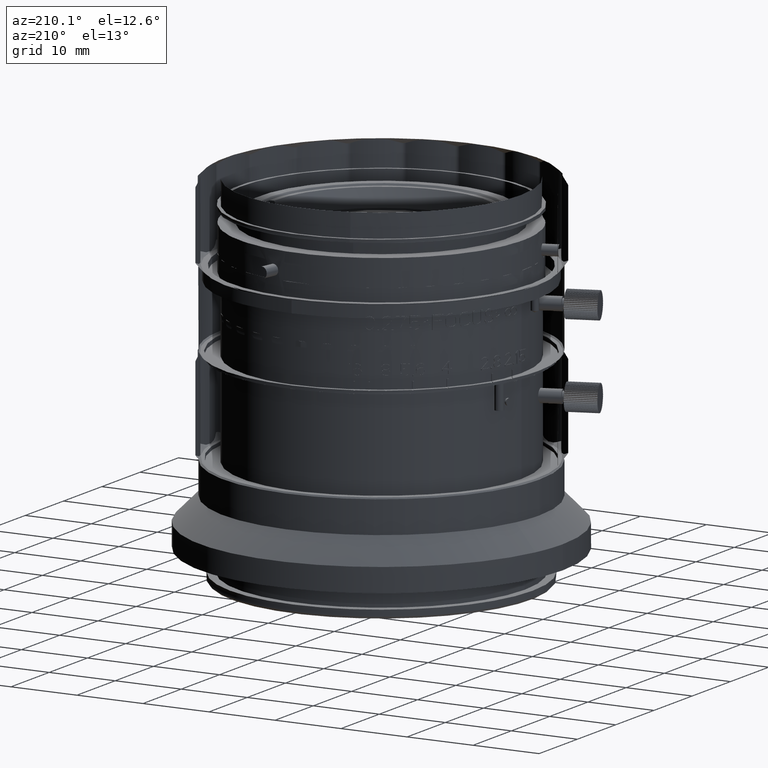
[diagram: clean part render]
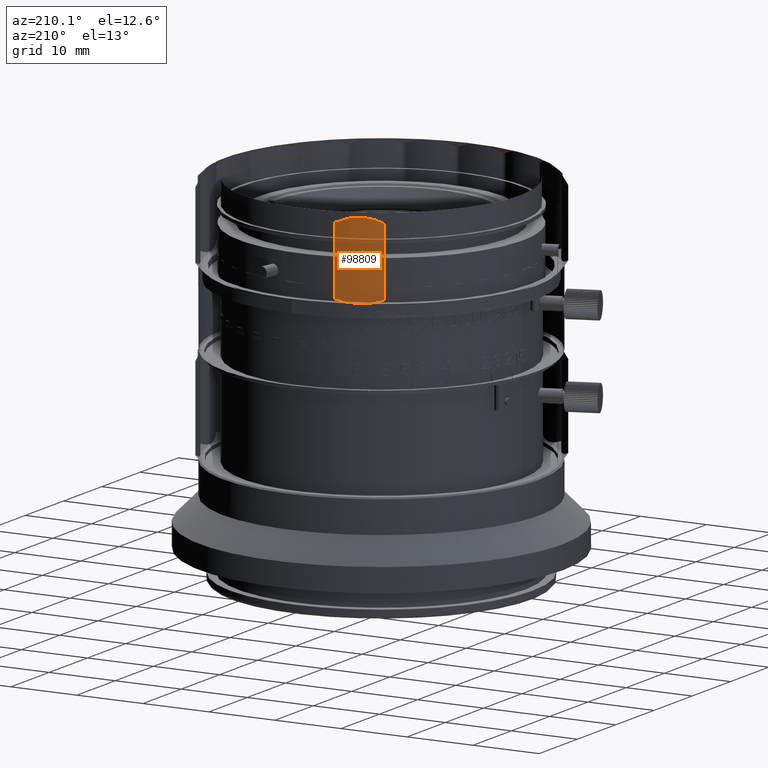
[diagram: same view with one face highlighted and labeled with its STEP entity id]
A machine part, auxiliary view. The second image highlights one B-rep face of the part: STEP entity #98809.
In plain terms, the highlighted cylindrical surface (partial cylindrical patch) has radius 12 mm, axis along (0, 0, -1).
Its self-contained STEP definition (entity closure, byte-faithful):
#165 = CARTESIAN_POINT ( 'NONE',  ( 12.97876691602714061, 172.0445804744520331, 0.4292614063195676621 ) ) ;
#1224 = CARTESIAN_POINT ( 'NONE',  ( 14.85934242119408744, 172.7186698376395384, 0.2399982935882025992 ) ) ;
#1886 = ORIENTED_EDGE ( 'NONE', *, *, #66856, .T. ) ;
#3799 = CARTESIAN_POINT ( 'NONE',  ( 15.84229651069127698, 173.2274142907566841, 0.3610169438066848646 ) ) ;
#4329 = CARTESIAN_POINT ( 'NONE',  ( 14.36312422311913473, 172.5051111743483432, 11.84000170641039595 ) ) ;
#5763 = FACE_OUTER_BOUND ( 'NONE', #25250, .T. ) ;
#7646 = CARTESIAN_POINT ( 'NONE',  ( 13.59244976808349215, 172.2132086713253898, 0.2982378233034623793 ) ) ;
#9687 = B_SPLINE_CURVE_WITH_KNOTS ( 'NONE', 3,
 ( #17382, #15802, #48800, #49306 ),
 .UNSPECIFIED., .F., .F.,
 ( 4, 4 ),
 ( 0.000000000000000000, 1.000000000000000000 ),
 .UNSPECIFIED. ) ;
#10775 = ORIENTED_EDGE ( 'NONE', *, *, #38136, .T. ) ;
#11422 = AXIS2_PLACEMENT_3D ( 'NONE', #14825, #38237, #77679 ) ;
#12329 = CARTESIAN_POINT ( 'NONE',  ( 16.99829896620909153, 173.9790740545632559, 11.37374039874287845 ) ) ;
#12854 = CARTESIAN_POINT ( 'NONE',  ( 17.21666227492107026, 174.1442508467244181, 11.27805276343194407 ) ) ;
#13374 = CARTESIAN_POINT ( 'NONE',  ( 15.60113130225684408, 173.0776899520712959, 11.78176217668610626 ) ) ;
#14825 = CARTESIAN_POINT ( 'NONE',  ( 9.867435424070441385, 183.6344302088990048, 6.040016862345479076 ) ) ;
#15802 = CARTESIAN_POINT ( 'NONE',  ( 11.43642558011166876, 171.7374444608092290, 7.749779129829686752 ) ) ;
#16693 = CARTESIAN_POINT ( 'NONE',  ( 12.38030947271998095, 171.8996850754695345, 0.5822697562960894579 ) ) ;
#17382 = CARTESIAN_POINT ( 'NONE',  ( 11.43642558011230115, 171.7374444608055057, 11.16933738949195920 ) ) ;
#18497 = CARTESIAN_POINT ( 'NONE',  ( 17.42880474867331131, 174.3163996263692468, 7.749779129829757807 ) ) ;
#18769 = CARTESIAN_POINT ( 'NONE',  ( 16.02620090903052130, 173.3351908225715476, 0.4005537121752622554 ) ) ;
#19807 = CARTESIAN_POINT ( 'NONE',  ( 15.10745152026406046, 172.8254491692991053, 11.83999658724174786 ) ) ;
#20863 = CARTESIAN_POINT ( 'NONE',  ( 13.71719599574490012, 172.2678803091232851, 11.78176814945230788 ) ) ;
#21900 = CARTESIAN_POINT ( 'NONE',  ( 16.14547060630690112, 173.4074426382354090, 11.65073859367211639 ) ) ;
#23615 = CARTESIAN_POINT ( 'NONE',  ( 11.70728281365747669, 171.7731654696533212, 0.8019472365968065564 ) ) ;
#24395 = CARTESIAN_POINT ( 'NONE',  ( 17.42880474869064855, 174.3163996263739932, 0.9106626104907910024 ) ) ;
#25250 = EDGE_LOOP ( 'NONE', ( #49783, #32735, #10775, #1886 ) ) ;
#26461 = CARTESIAN_POINT ( 'NONE',  ( 17.42880474867331131, 174.3163996263692468, 4.330220870166412439 ) ) ;
#28301 = CARTESIAN_POINT ( 'NONE',  ( 17.00449503299152099, 173.9720819682685828, 0.6932191698120128143 ) ) ;
#28805 = CARTESIAN_POINT ( 'NONE',  ( 13.11323041602540407, 172.0815284476176998, 11.67944628782073124 ) ) ;
#32735 = ORIENTED_EDGE ( 'NONE', *, *, #95438, .T. ) ;
#35541 = VERTEX_POINT ( 'NONE', #41941 ) ;
#36799 = CARTESIAN_POINT ( 'NONE',  ( 14.10846772385379388, 172.4054455101197618, 11.82544395706695717 ) ) ;
#37318 = CARTESIAN_POINT ( 'NONE',  ( 12.51674176810439043, 171.9176248860021587, 11.55210062349452826 ) ) ;
#37843 = CARTESIAN_POINT ( 'NONE',  ( 13.31792620865803833, 172.1409947490219849, 11.71898305618811165 ) ) ;
#38136 = EDGE_CURVE ( 'NONE', #35541, #68337, #39759, .T. ) ;
#38237 = DIRECTION ( 'NONE',  ( 0.000000000000000000, 0.000000000000000000, -1.000000000000000000 ) ) ;
#39759 = B_SPLINE_CURVE_WITH_KNOTS ( 'NONE', 3,
 ( #74166, #23615, #105087, #16693, #88585, #41702, #49139, #165, #7646, #40130, #1224, #64591, #89125, #81646, #3799, #82699, #18769, #42716, #28301, #50177 ),
 .UNSPECIFIED., .F., .F.,
 ( 4, 2, 1, 2, 2, 2, 2, 1, 2, 2, 4 ),
 ( 0.000000000000000000, 0.1249999999999998890, 0.1874999999999994726, 0.2187499999999992784, 0.2499999999999990841, 0.5000000000000106581, 0.6250000000000167644, 0.6875000000000194289, 0.7187500000000202061, 0.7500000000000208722, 1.000000000000000000 ),
 .UNSPECIFIED. ) ;
#40130 = CARTESIAN_POINT ( 'NONE',  ( 14.11501512411694570, 172.3983318427178233, 0.2400034127493720637 ) ) ;
#41702 = CARTESIAN_POINT ( 'NONE',  ( 12.78120185689402533, 171.9933528334150026, 0.4753788182041849830 ) ) ;
#41941 = CARTESIAN_POINT ( 'NONE',  ( 11.43642558010849974, 171.7374444608044826, 0.9106626104925680254 ) ) ;
#42716 = CARTESIAN_POINT ( 'NONE',  ( 16.55528888048909053, 173.6557044773959717, 0.5278993764581791925 ) ) ;
#45316 = CARTESIAN_POINT ( 'NONE',  ( 16.31848980518220316, 173.5157042683969166, 11.60462118182514857 ) ) ;
#48800 = CARTESIAN_POINT ( 'NONE',  ( 11.43642558011193167, 171.7374444608092858, 4.330220870166472835 ) ) ;
#49139 = CARTESIAN_POINT ( 'NONE',  ( 12.91426299453387117, 172.0274685460469470, 0.4438196738220018811 ) ) ;
#49306 = CARTESIAN_POINT ( 'NONE',  ( 11.43642558010849974, 171.7374444608044826, 0.9106626104925680254 ) ) ;
#49783 = ORIENTED_EDGE ( 'NONE', *, *, #105142, .T. ) ;
#50177 = CARTESIAN_POINT ( 'NONE',  ( 17.42880474869064855, 174.3163996263739932, 0.9106626104907910024 ) ) ;
#57362 = CARTESIAN_POINT ( 'NONE',  ( 17.42880474868855245, 174.3163996263724869, 11.16933738949425958 ) ) ;
#61275 = CARTESIAN_POINT ( 'NONE',  ( 11.43642558011230115, 171.7374444608055057, 11.16933738949195920 ) ) ;
#64591 = CARTESIAN_POINT ( 'NONE',  ( 15.10678635623857247, 172.8350943893769056, 0.2545560429324790763 ) ) ;
#66856 = EDGE_CURVE ( 'NONE', #68337, #85409, #80036, .T. ) ;
#67733 = CARTESIAN_POINT ( 'NONE',  ( 11.43642558011230115, 171.7374444608055057, 11.16933738949195920 ) ) ;
#68337 = VERTEX_POINT ( 'NONE', #24395 ) ;
#69272 = CARTESIAN_POINT ( 'NONE',  ( 13.51924056866963042, 172.2020811999162220, 11.75447044974511890 ) ) ;
#70324 = CARTESIAN_POINT ( 'NONE',  ( 11.97817167063042021, 171.8088906490368402, 11.38678083013650522 ) ) ;
#74166 = CARTESIAN_POINT ( 'NONE',  ( 11.43642558010849974, 171.7374444608044826, 0.9106626104925680254 ) ) ;
#77293 = CARTESIAN_POINT ( 'NONE',  ( 16.66210769048314688, 173.7424532516389206, 11.49773024376126429 ) ) ;
#77679 = DIRECTION ( 'NONE',  ( 0.6301141103835614654, -0.7765025485441324760, 0.000000000000000000 ) ) ;
#77815 = CARTESIAN_POINT ( 'NONE',  ( 16.20224103969530915, 173.4425238563415803, 11.63618032619060472 ) ) ;
#80036 = B_SPLINE_CURVE_WITH_KNOTS ( 'NONE', 3,
 ( #90401, #26461, #18497, #90932 ),
 .UNSPECIFIED., .F., .F.,
 ( 4, 4 ),
 ( 0.000000000000000000, 1.000000000000000000 ),
 .UNSPECIFIED. ) ;
#81646 = CARTESIAN_POINT ( 'NONE',  ( 15.65954007302760509, 173.1232072347231110, 0.3255295502518528172 ) ) ;
#82699 = CARTESIAN_POINT ( 'NONE',  ( 15.96385738908711183, 173.2981550311889976, 0.3864951381429901356 ) ) ;
#82810 = CARTESIAN_POINT ( 'NONE',  ( 16.49185132247669827, 173.6269283129115593, 11.55483976428345905 ) ) ;
#85409 = VERTEX_POINT ( 'NONE', #57362 ) ;
#87779 = CYLINDRICAL_SURFACE ( 'NONE', #11422, 12.00000000000020783 ) ;
#88585 = CARTESIAN_POINT ( 'NONE',  ( 12.58125007115444483, 171.9439131008092545, 0.5251602357665290377 ) ) ;
#89125 = CARTESIAN_POINT ( 'NONE',  ( 15.47567024989966455, 173.0246792588688436, 0.2982318505458936286 ) ) ;
#90401 = CARTESIAN_POINT ( 'NONE',  ( 17.42880474869064855, 174.3163996263739932, 0.9106626104907910024 ) ) ;
#90932 = CARTESIAN_POINT ( 'NONE',  ( 17.42880474868855245, 174.3163996263724869, 11.16933738949425958 ) ) ;
#94852 = CARTESIAN_POINT ( 'NONE',  ( 17.42880474868855245, 174.3163996263724869, 11.16933738949425958 ) ) ;
#95438 = EDGE_CURVE ( 'NONE', #97814, #35541, #9687, .T. ) ;
#97814 = VERTEX_POINT ( 'NONE', #67733 ) ;
#98000 = B_SPLINE_CURVE_WITH_KNOTS ( 'NONE', 3,
 ( #94852, #12854, #12329, #77293, #82810, #45316, #77815, #21900, #13374, #19807, #4329, #36799, #20863, #69272, #37843, #101775, #28805, #37318, #70324, #61275 ),
 .UNSPECIFIED., .F., .F.,
 ( 4, 2, 1, 2, 2, 2, 2, 1, 2, 2, 4 ),
 ( 0.000000000000000000, 0.1250000000000010270, 0.1874999999999975020, 0.2187499999999958644, 0.2499999999999941991, 0.4999999999999985567, 0.6250000000000006661, 0.6875000000000042188, 0.7187500000000037748, 0.7500000000000033307, 1.000000000000000000 ),
 .UNSPECIFIED. ) ;
#98809 = ADVANCED_FACE ( 'NONE', ( #5763 ), #87779, .T. ) ;
#101775 = CARTESIAN_POINT ( 'NONE',  ( 13.18298502790678839, 172.1013440586362435, 11.69350486185015470 ) ) ;
#105087 = CARTESIAN_POINT ( 'NONE',  ( 11.97735327857052745, 171.8181971386293583, 0.7062596013114926796 ) ) ;
#105142 = EDGE_CURVE ( 'NONE', #85409, #97814, #98000, .T. ) ;